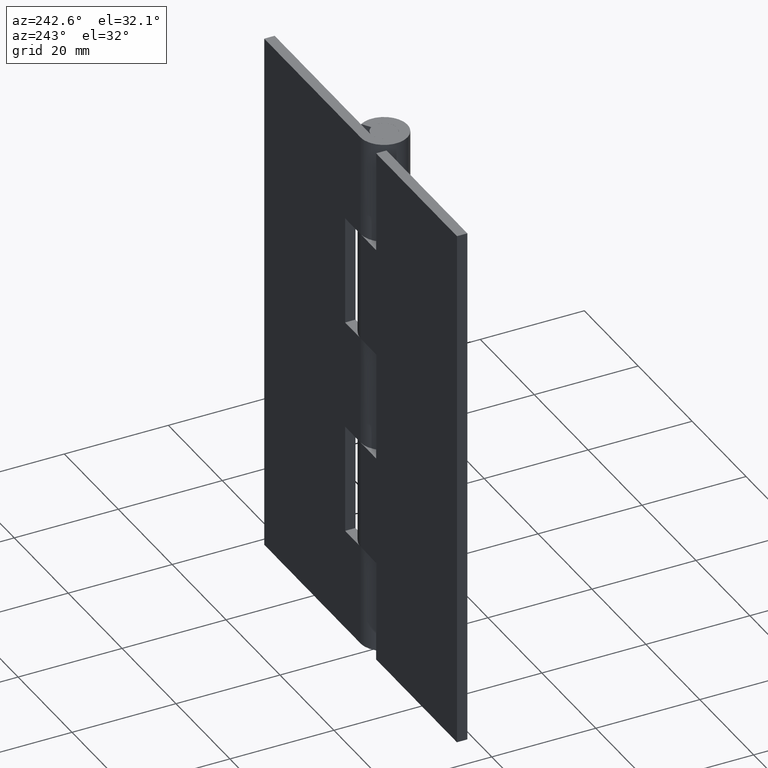
[diagram: clean part render]
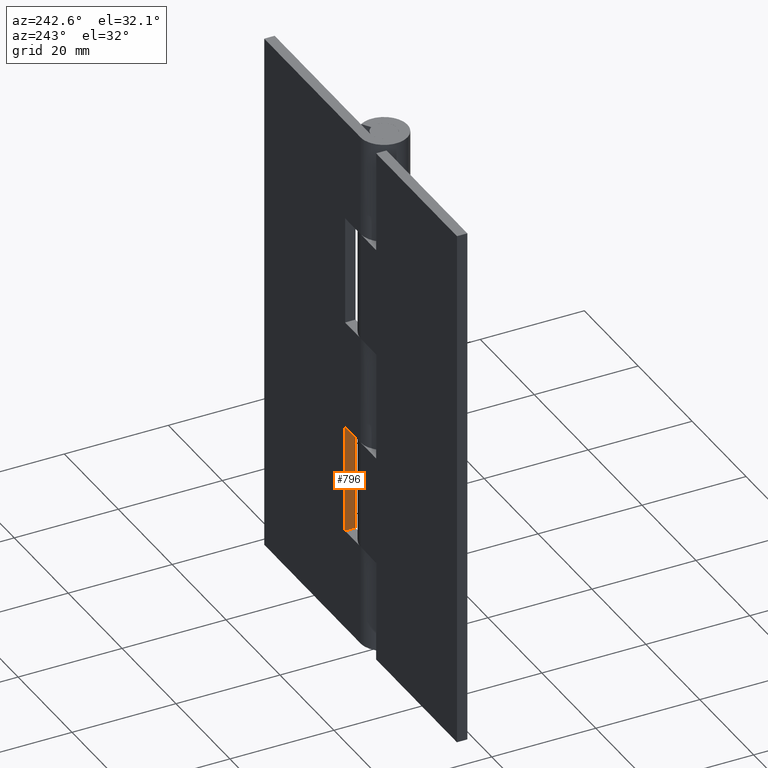
[diagram: same view with one face highlighted and labeled with its STEP entity id]
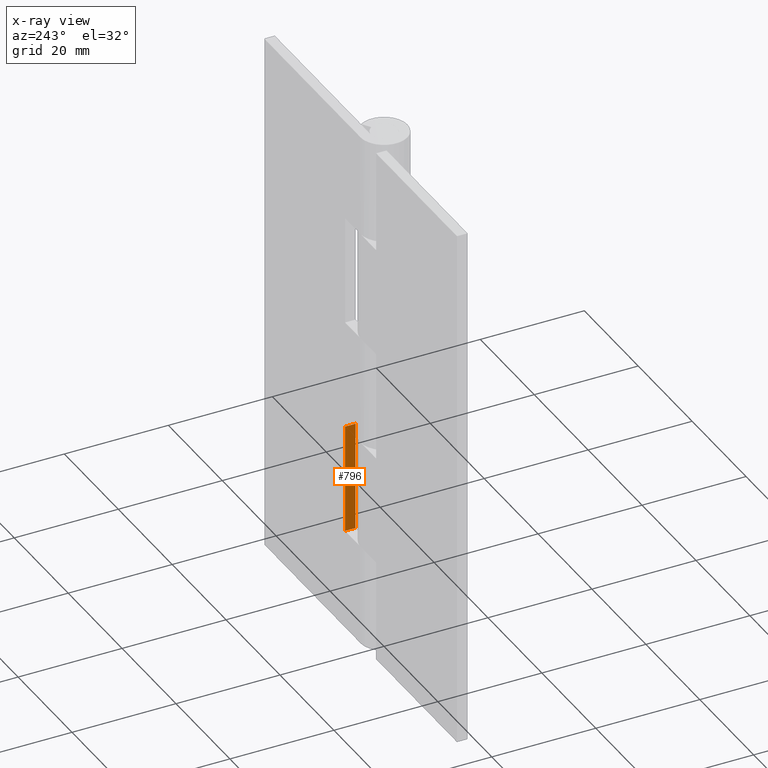
[diagram: x-ray of the same camera — body ghosted, the highlighted face saturated]
A machine part, auxiliary view. The second image highlights one B-rep face of the part: STEP entity #796.
The next image is the same camera in x-ray: the body ghosted, the highlighted face saturated — about 0% of this face is hidden behind the body in this view.
In plain terms, the highlighted face is a freeform B-spline surface patch.
Its self-contained STEP definition (entity closure, byte-faithful):
#761=CARTESIAN_POINT('',(5.750000000000000,4.599899996123563,41.548949959297929));
#762=CARTESIAN_POINT('',(5.750000000000000,4.599899996123563,18.451049477438179));
#763=CARTESIAN_POINT('',(5.750000000000000,2.400099950232152,41.548949959297929));
#764=CARTESIAN_POINT('',(5.750000000000000,2.400099950232152,18.451049477438179));
#765=B_SPLINE_SURFACE_WITH_KNOTS('',1,1,((#761,#763),(#762,#764)),.UNSPECIFIED.,.F.,.F.,.U.,(2,2),(2,2),(0.0,23.097900481859750),(0.0,2.199800045891411),.UNSPECIFIED.);
#766=CARTESIAN_POINT('',(5.750000000000000,2.499999999999945,40.500000000000000));
#767=VERTEX_POINT('',#766);
#768=CARTESIAN_POINT('',(5.750000000000000,4.499999999999949,40.500000000000000));
#769=VERTEX_POINT('',#768);
#770=CARTESIAN_POINT('',(5.750000000000000,2.499999999999945,40.500000000000000));
#771=CARTESIAN_POINT('',(5.750000000000000,4.499999999999949,40.500000000000000));
#772=QUASI_UNIFORM_CURVE('',1,(#770,#771),.UNSPECIFIED.,.F.,.U.);
#773=EDGE_CURVE('',#767,#769,#772,.T.);
#774=ORIENTED_EDGE('',*,*,#773,.T.);
#775=CARTESIAN_POINT('',(5.750000000000000,4.499999999999949,19.500000000000000));
#776=VERTEX_POINT('',#775);
#777=CARTESIAN_POINT('',(5.750000000000000,4.499999999999949,40.500000000000000));
#778=CARTESIAN_POINT('',(5.750000000000000,4.499999999999949,19.500000000000000));
#779=QUASI_UNIFORM_CURVE('',1,(#777,#778),.UNSPECIFIED.,.F.,.U.);
#780=EDGE_CURVE('',#769,#776,#779,.T.);
#781=ORIENTED_EDGE('',*,*,#780,.T.);
#782=CARTESIAN_POINT('',(5.750000000000000,2.499999999999945,19.500000000000000));
#783=VERTEX_POINT('',#782);
#784=CARTESIAN_POINT('',(5.750000000000000,2.499999999999945,19.500000000000000));
#785=CARTESIAN_POINT('',(5.750000000000000,4.499999999999949,19.500000000000000));
#786=QUASI_UNIFORM_CURVE('',1,(#784,#785),.UNSPECIFIED.,.F.,.U.);
#787=EDGE_CURVE('',#783,#776,#786,.T.);
#788=ORIENTED_EDGE('',*,*,#787,.F.);
#789=CARTESIAN_POINT('',(5.750000000000000,2.499999999999945,40.500000000000000));
#790=CARTESIAN_POINT('',(5.750000000000000,2.499999999999945,19.500000000000000));
#791=QUASI_UNIFORM_CURVE('',1,(#789,#790),.UNSPECIFIED.,.F.,.U.);
#792=EDGE_CURVE('',#767,#783,#791,.T.);
#793=ORIENTED_EDGE('',*,*,#792,.F.);
#794=EDGE_LOOP('',(#774,#781,#788,#793));
#795=FACE_OUTER_BOUND('',#794,.T.);
#796=ADVANCED_FACE('',(#795),#765,.T.);